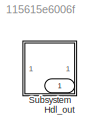
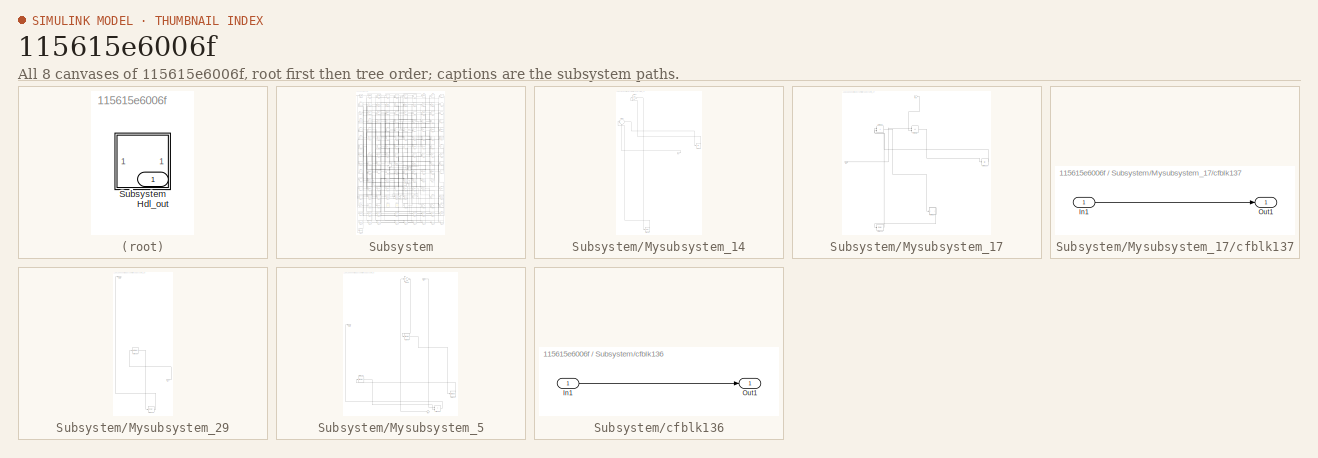
[diagram: thumbnail index - all 8 canvases of the model, root first then tree order]
MODEL slx_115615e6006f
KIND model
CONFIG AbsTol = auto
CONFIG EnableMultiTasking = off
CONFIG FixedStep = auto
CONFIG MaxStep = auto
CONFIG MinStep = auto
CONFIG RelTol = 1e-3
CONFIG SampleTimeConstraint = Unconstrained
CONFIG SolverName = VariableStepAuto
CONFIG StartTime = 0.0
CONFIG StopTime = 10.0
BLOCK [Outport] Hdl_out
  OutDataTypeStr = uint8
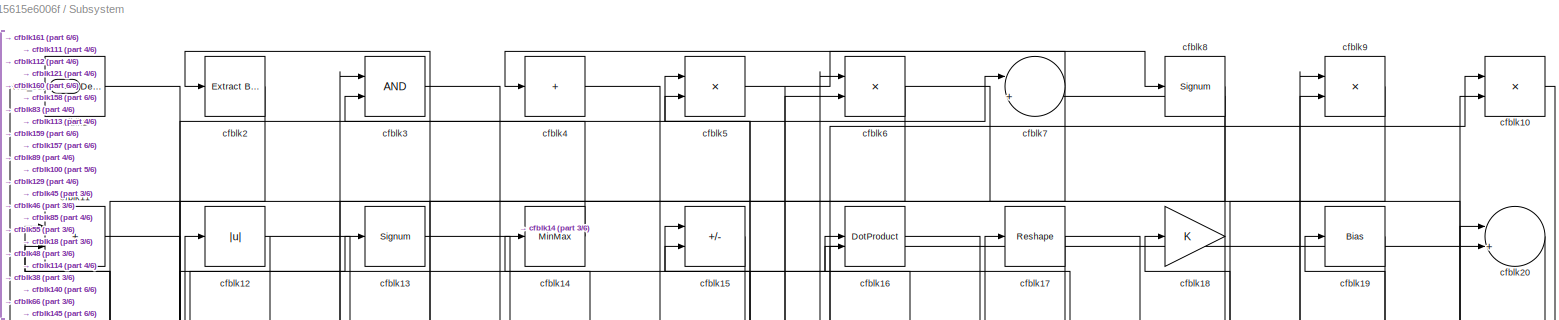
[diagram: Subsystem - part 1/6, full width, top band]
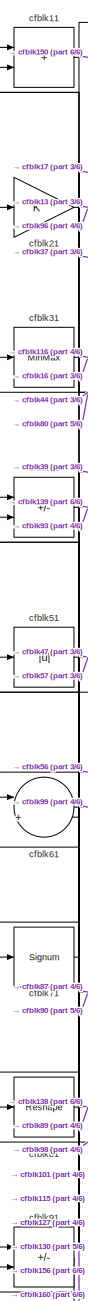
[diagram: Subsystem - part 2/6, top left region]
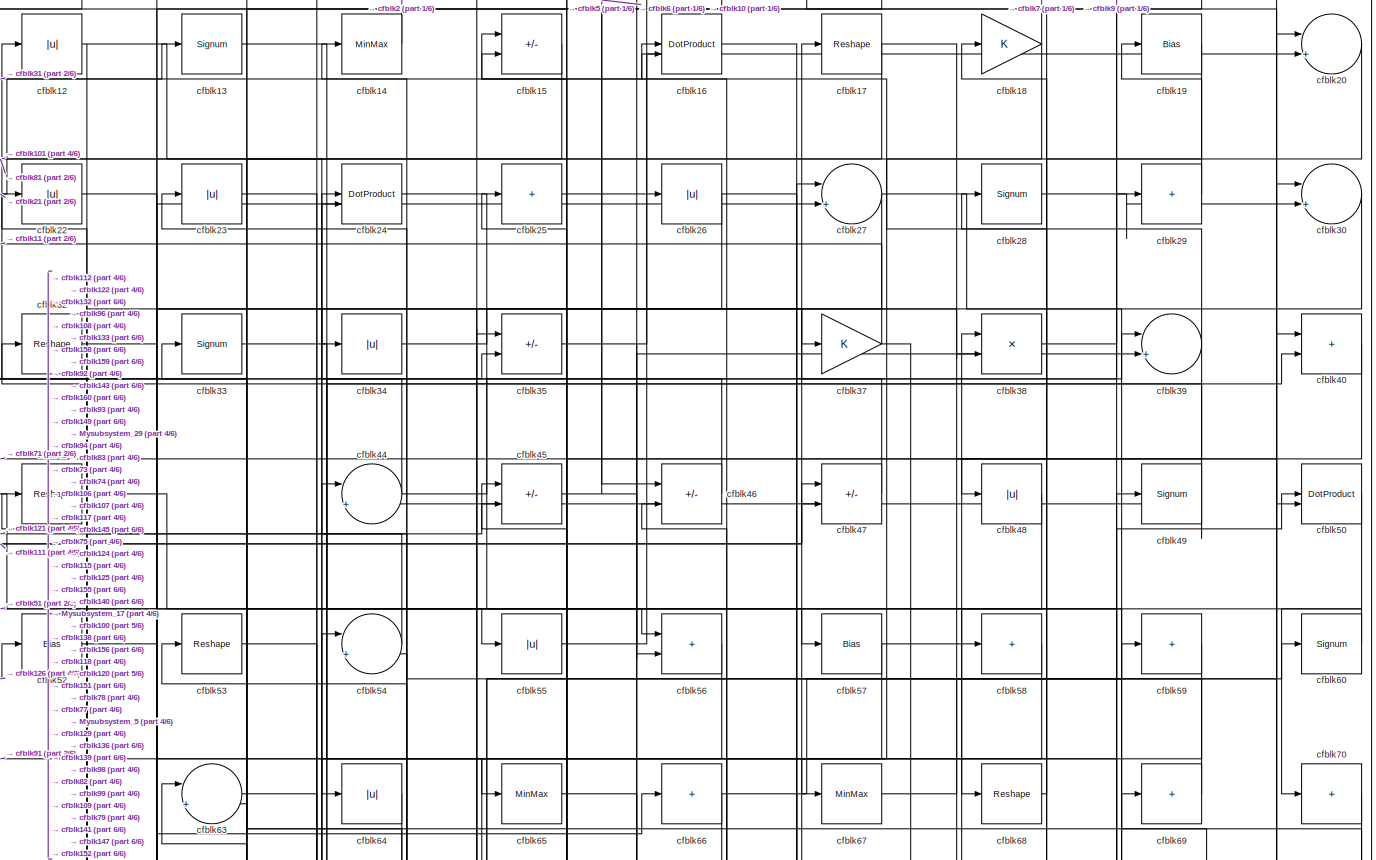
[diagram: Subsystem - part 3/6, full width, top band]
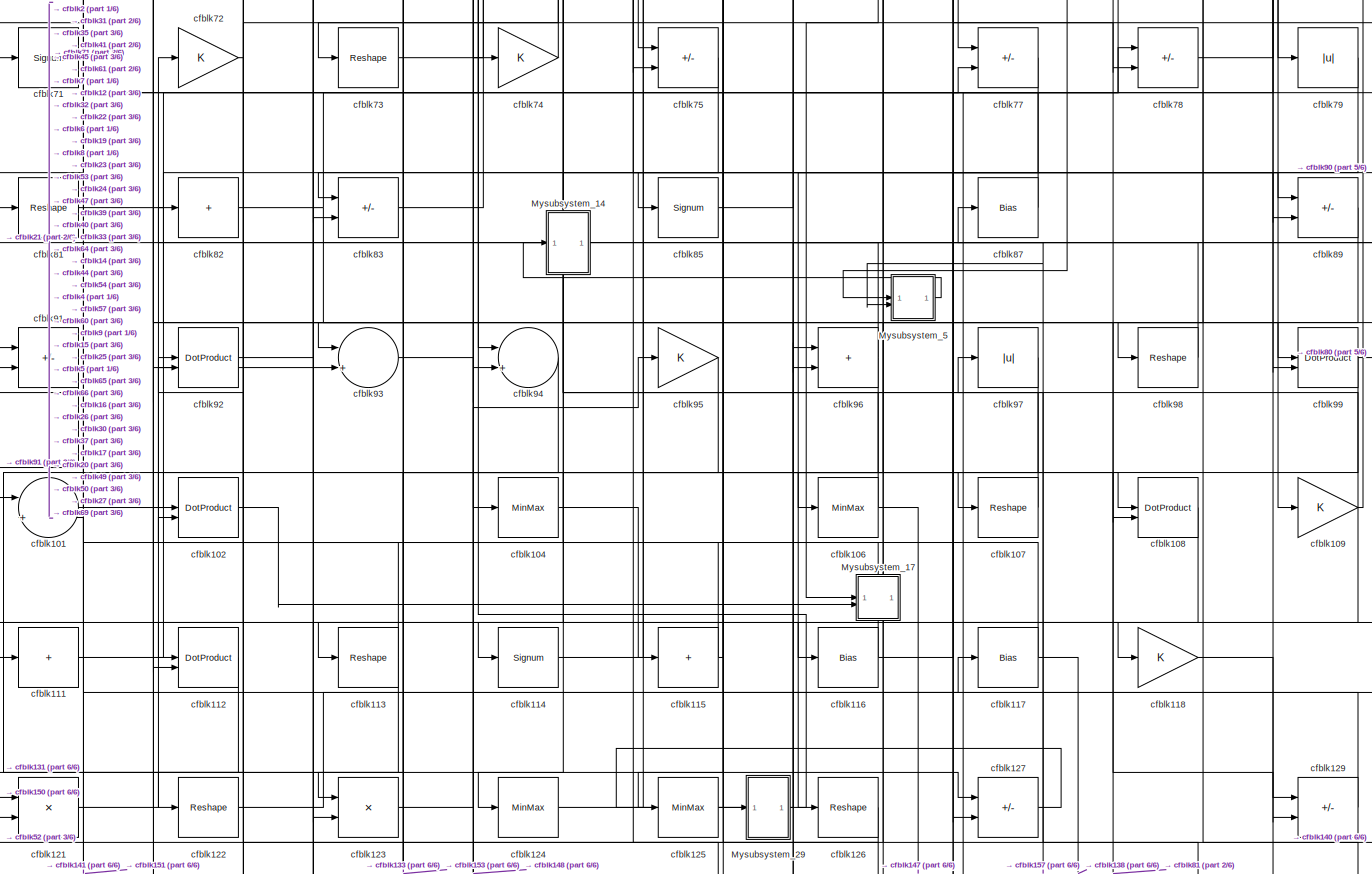
[diagram: Subsystem - part 4/6, full width, middle band]
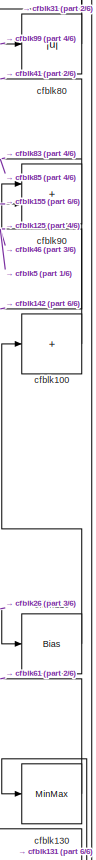
[diagram: Subsystem - part 5/6, middle right region]
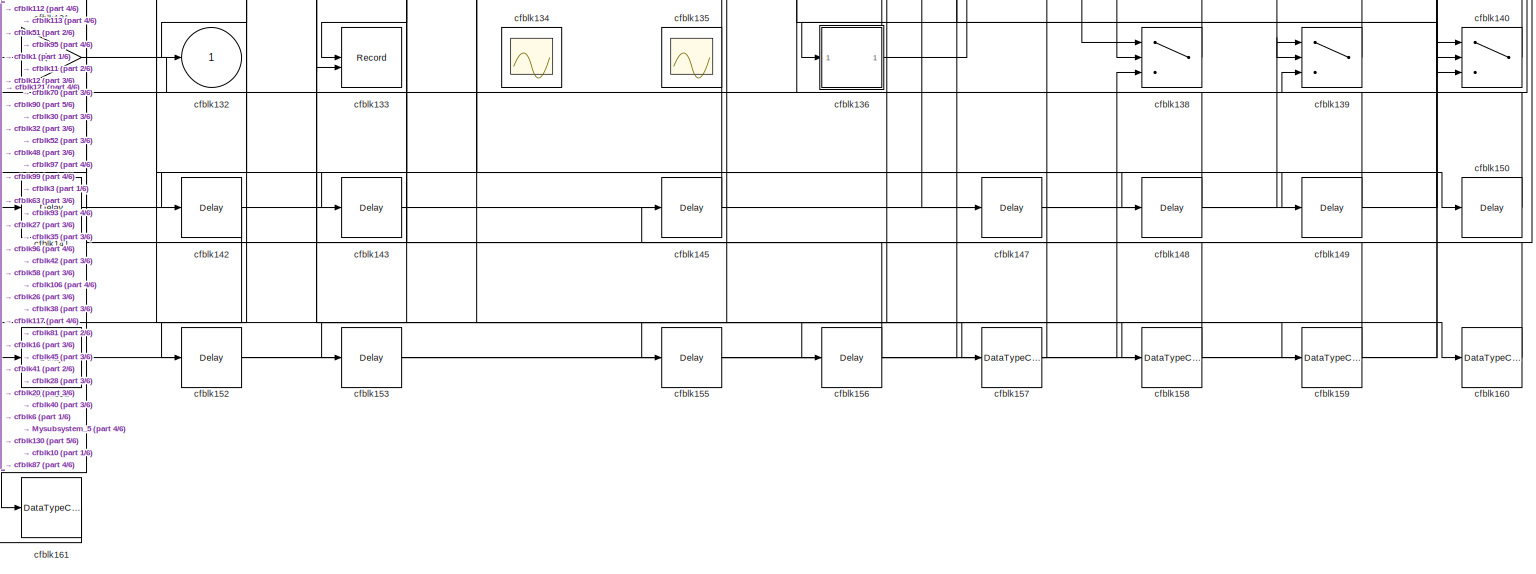
[diagram: Subsystem - part 6/6, full width, bottom band]
BLOCK [SubSystem] Subsystem
BLOCK [Outport] Subsystem/Hdl_out
  OutDataTypeStr = uint8
  Port = 2
BLOCK [SubSystem] Subsystem/Mysubsystem_14
  RTWFcnName = Mysubsystem_14
  RTWFcnNameOpts = User specified
  RTWFileNameOpts = Use function name
  RTWSystemCode = Reusable function
  TreatAsAtomicUnit = on
BLOCK [Inport] Subsystem/Mysubsystem_14/In1
BLOCK [Delay] Subsystem/Mysubsystem_14/cfblk154
  InputPortMap = u0
  SampleTime = 1
BLOCK [Gain] Subsystem/Mysubsystem_14/cfblk43
BLOCK [Sum] Subsystem/Mysubsystem_14/cfblk62
  Inputs = |++
BLOCK [Abs] Subsystem/Mysubsystem_14/cfblk88
  SaturateOnIntegerOverflow = off
BLOCK [SubSystem] Subsystem/Mysubsystem_17
  RTWFcnName = Mysubsystem_17
  RTWFcnNameOpts = User specified
  RTWFileNameOpts = Use function name
  RTWSystemCode = Reusable function
  TreatAsAtomicUnit = on
BLOCK [Inport] Subsystem/Mysubsystem_17/In1
BLOCK [Inport] Subsystem/Mysubsystem_17/In2
  Port = 2
BLOCK [Abs] Subsystem/Mysubsystem_17/cfblk110
  SaturateOnIntegerOverflow = off
BLOCK [SubSystem] Subsystem/Mysubsystem_17/cfblk137
  LibrarySourceBlock = hdlsllib/Ports &\nSubsystems/Subsystem
BLOCK [Inport] Subsystem/Mysubsystem_17/cfblk137/In1
BLOCK [Outport] Subsystem/Mysubsystem_17/cfblk137/Out1
BLOCK [Delay] Subsystem/Mysubsystem_17/cfblk144
  InputPortMap = u0
  SampleTime = 1
BLOCK [Sum] Subsystem/Mysubsystem_17/cfblk84
  IconShape = rectangular
BLOCK [Sum] Subsystem/Mysubsystem_17/cfblk86
  IconShape = rectangular
  Inputs = +-
BLOCK [SubSystem] Subsystem/Mysubsystem_29
  RTWFcnName = Mysubsystem_29
  RTWFcnNameOpts = User specified
  RTWFileNameOpts = Use function name
  RTWSystemCode = Reusable function
  TreatAsAtomicUnit = on
BLOCK [Inport] Subsystem/Mysubsystem_29/In1
BLOCK [Outport] Subsystem/Mysubsystem_29/Out1
BLOCK [MinMax] Subsystem/Mysubsystem_29/cfblk105
BLOCK [Delay] Subsystem/Mysubsystem_29/cfblk146
  InputPortMap = u0
  SampleTime = 1
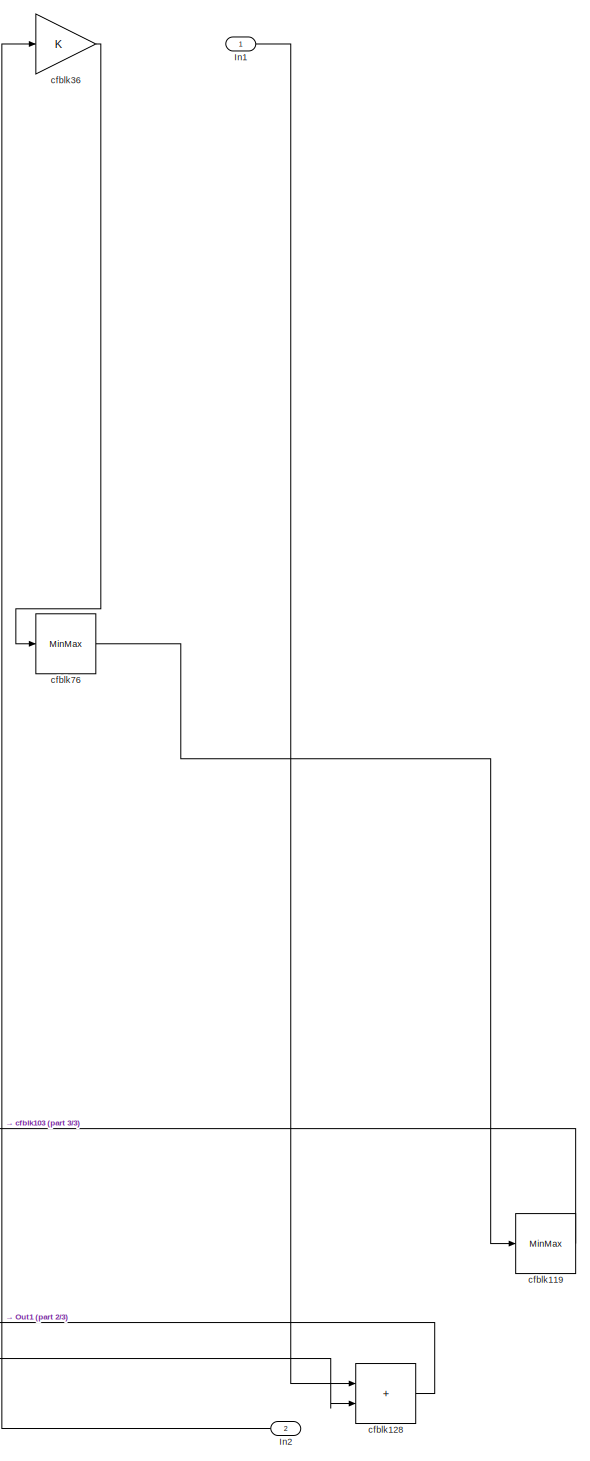
[diagram: Subsystem/Mysubsystem_5 - part 1/3, right side, full height]
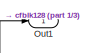
[diagram: Subsystem/Mysubsystem_5 - part 2/3, middle left region]
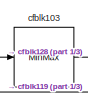
[diagram: Subsystem/Mysubsystem_5 - part 3/3, bottom left region]
BLOCK [SubSystem] Subsystem/Mysubsystem_5
  RTWFcnName = Mysubsystem_5
  RTWFcnNameOpts = User specified
  RTWFileNameOpts = Use function name
  RTWSystemCode = Reusable function
  TreatAsAtomicUnit = on
BLOCK [Inport] Subsystem/Mysubsystem_5/In1
BLOCK [Inport] Subsystem/Mysubsystem_5/In2
  Port = 2
BLOCK [Outport] Subsystem/Mysubsystem_5/Out1
BLOCK [MinMax] Subsystem/Mysubsystem_5/cfblk103
BLOCK [MinMax] Subsystem/Mysubsystem_5/cfblk119
BLOCK [Sum] Subsystem/Mysubsystem_5/cfblk128
  IconShape = rectangular
BLOCK [Gain] Subsystem/Mysubsystem_5/cfblk36
BLOCK [MinMax] Subsystem/Mysubsystem_5/cfblk76
BLOCK [Reference] Subsystem/cfblk1  REF=simulink/Logic and Bit
Operations/Detect
Decrease
  LibrarySourceBlock = hdlsllib/Logic and Bit\nOperations/Detect\nDecrease
  SourceBlock = simulink/Logic and Bit\nOperations/Detect\nDecrease
  SourceType = Detect Decrease
BLOCK [Product] Subsystem/cfblk10
  Inputs = */
  OutDataTypeStr = uint8
  RndMeth = Zero
  SaturateOnIntegerOverflow = on
BLOCK [Sum] Subsystem/cfblk100
  IconShape = rectangular
  Inputs = +
  OutDataTypeStr = uint8
BLOCK [Sum] Subsystem/cfblk101
  Inputs = |++
  OutDataTypeStr = uint8
BLOCK [DotProduct] Subsystem/cfblk102
  OutDataTypeStr = uint8
BLOCK [MinMax] Subsystem/cfblk104
  OutDataTypeStr = uint8
BLOCK [MinMax] Subsystem/cfblk106
  OutDataTypeStr = uint8
BLOCK [Reshape] Subsystem/cfblk107
BLOCK [DotProduct] Subsystem/cfblk108
  OutDataTypeStr = uint8
BLOCK [Gain] Subsystem/cfblk109
  OutDataTypeStr = uint8
BLOCK [Sum] Subsystem/cfblk11
  IconShape = rectangular
  OutDataTypeStr = uint8
BLOCK [Sum] Subsystem/cfblk111
  IconShape = rectangular
  Inputs = +
  OutDataTypeStr = uint8
BLOCK [DotProduct] Subsystem/cfblk112
  OutDataTypeStr = uint8
BLOCK [Reshape] Subsystem/cfblk113
BLOCK [Signum] Subsystem/cfblk114
BLOCK [Sum] Subsystem/cfblk115
  IconShape = rectangular
  Inputs = +
  OutDataTypeStr = uint8
BLOCK [Bias] Subsystem/cfblk116
  Bias = 0.0
  SaturateOnIntegerOverflow = off
BLOCK [Bias] Subsystem/cfblk117
  Bias = 0.0
  SaturateOnIntegerOverflow = off
BLOCK [Gain] Subsystem/cfblk118
  OutDataTypeStr = uint8
BLOCK [Abs] Subsystem/cfblk12
  OutDataTypeStr = uint8
  SaturateOnIntegerOverflow = off
BLOCK [Bias] Subsystem/cfblk120
  Bias = 0.0
  SaturateOnIntegerOverflow = off
BLOCK [Product] Subsystem/cfblk121
  Inputs = */
  OutDataTypeStr = uint8
  RndMeth = Zero
  SaturateOnIntegerOverflow = on
BLOCK [Reshape] Subsystem/cfblk122
BLOCK [Product] Subsystem/cfblk123
  Inputs = */
  OutDataTypeStr = uint8
  RndMeth = Zero
  SaturateOnIntegerOverflow = on
BLOCK [MinMax] Subsystem/cfblk124
  OutDataTypeStr = uint8
BLOCK [MinMax] Subsystem/cfblk125
  OutDataTypeStr = uint8
BLOCK [Reshape] Subsystem/cfblk126
BLOCK [Sum] Subsystem/cfblk127
  IconShape = rectangular
  Inputs = +-
  OutDataTypeStr = uint8
BLOCK [Sum] Subsystem/cfblk129
  IconShape = rectangular
  Inputs = +-
  OutDataTypeStr = uint8
BLOCK [Signum] Subsystem/cfblk13
BLOCK [MinMax] Subsystem/cfblk130
  OutDataTypeStr = uint8
BLOCK [Gain] Subsystem/cfblk131
  OutDataTypeStr = uint8
BLOCK [Outport] Subsystem/cfblk132
  OutDataTypeStr = uint8
  VectorParamsAs1DForOutWhenUnconnected = off
BLOCK [Record] Subsystem/cfblk133
  CompatibilityTag = XY
  FileSettingsInternal = {"entries":[{"content":{"excelSettings":{"content":{},"type":"Streamout.ExcelSettings"}},"type":"Streamout.FileSettingStorage","uuid":""}],"packageUris":["http:\/\/schema.mathworks.com\/mf0\/streamout_blocks\/R2020a"],"version":"1.0"}
  Layout = [1 1]
  SignalsInternal = {"entries":[{"content":{"signals":[{"content":{"blockPath":[],"dimensions":[1],"domain":"","lineColor":"#a2142f","plots":[1],"port":1,"signalID":60876,"signalName":"cfblk97"},"type":"RecordBlkView.Signal","uuid":""},{"content":{"blockPath":[],"dimensions":[1],"domain":"","lineColor":"#139fff","plots":[1],"port":2,"signalID":60879,"signalName":"cfblk30"},"type":"RecordBlkView.Signal","uuid":""}]},"...<+142ch>
  VisualizationBindings = {"xyplotplugin":{"info":[{"series":[{"bindingParametersList":[{"parameter":"X-Axis","signalID":60876,"signalName":"cfblk97"},{"parameter":"Y-Axis","signalID":60879,"signalName":"cfblk30"}],"seriesID":6446}],"subplotID":1}]}}
  st = -1
BLOCK [Scope] Subsystem/cfblk134
  Floating = on
  NumInputPorts = 1
  ScopeSpecificationString = Simulink.scopes.TimeScopeBlockCfg('CurrentConfiguration', extmgr.ConfigurationSet(extmgr.Configuration('Core','General UI',true,'FigureColor',[0.156862745098039 0.156862745098039 0.156862745098039]),extmgr.Configuration('Core','Source UI',true),extmgr.Configuration('Sources','WiredSimulink',true,'DataLoggingVariableName','ScopeData1','DataLoggingSaveFormat','StructureWithTime','DataLoggingLimitDat...<+2713ch>
BLOCK [Scope] Subsystem/cfblk135
  Floating = on
  NumInputPorts = 1
  ScopeSpecificationString = Simulink.scopes.TimeScopeBlockCfg('CurrentConfiguration', extmgr.ConfigurationSet(extmgr.Configuration('Core','General UI',true,'FigureColor',[0.156862745098039 0.156862745098039 0.156862745098039]),extmgr.Configuration('Core','Source UI',true),extmgr.Configuration('Sources','WiredSimulink',true,'DataLoggingSaveFormat','StructureWithTime','DataLoggingLimitDataPoints',true,'DataLoggingDecimation','...<+2674ch>
BLOCK [SubSystem] Subsystem/cfblk136
  LibrarySourceBlock = hdlsllib/Ports &\nSubsystems/Subsystem
BLOCK [Inport] Subsystem/cfblk136/In1
BLOCK [Outport] Subsystem/cfblk136/Out1
BLOCK [Switch] Subsystem/cfblk138
  InputSameDT = off
  OutDataTypeStr = uint8
  SaturateOnIntegerOverflow = off
BLOCK [Switch] Subsystem/cfblk139
  InputSameDT = off
  OutDataTypeStr = uint8
  SaturateOnIntegerOverflow = off
BLOCK [MinMax] Subsystem/cfblk14
  OutDataTypeStr = uint8
BLOCK [Switch] Subsystem/cfblk140
  InputSameDT = off
  OutDataTypeStr = uint8
  SaturateOnIntegerOverflow = off
BLOCK [Delay] Subsystem/cfblk141
  InputPortMap = u0
  SampleTime = 1
BLOCK [Delay] Subsystem/cfblk142
  InputPortMap = u0
  SampleTime = 1
BLOCK [Delay] Subsystem/cfblk143
  InputPortMap = u0
  SampleTime = 1
BLOCK [Delay] Subsystem/cfblk145
  InputPortMap = u0
  SampleTime = 1
BLOCK [Delay] Subsystem/cfblk147
  InputPortMap = u0
  SampleTime = 1
BLOCK [Delay] Subsystem/cfblk148
  InputPortMap = u0
  SampleTime = 1
BLOCK [Delay] Subsystem/cfblk149
  InputPortMap = u0
  SampleTime = 1
BLOCK [Sum] Subsystem/cfblk15
  IconShape = rectangular
  Inputs = +-
  OutDataTypeStr = uint8
BLOCK [Delay] Subsystem/cfblk150
  InputPortMap = u0
  SampleTime = 1
BLOCK [Delay] Subsystem/cfblk151
  InputPortMap = u0
  SampleTime = 1
BLOCK [Delay] Subsystem/cfblk152
  InputPortMap = u0
  SampleTime = 1
BLOCK [Delay] Subsystem/cfblk153
  InputPortMap = u0
  SampleTime = 1
BLOCK [Delay] Subsystem/cfblk155
  InputPortMap = u0
  SampleTime = 1
BLOCK [Delay] Subsystem/cfblk156
  InputPortMap = u0
  SampleTime = 1
BLOCK [DataTypeConversion] Subsystem/cfblk157
  OutDataTypeStr = uint8
  RndMeth = Floor
  SaturateOnIntegerOverflow = off
BLOCK [DataTypeConversion] Subsystem/cfblk158
  OutDataTypeStr = uint8
  RndMeth = Floor
  SaturateOnIntegerOverflow = off
BLOCK [DataTypeConversion] Subsystem/cfblk159
  OutDataTypeStr = uint8
  RndMeth = Floor
  SaturateOnIntegerOverflow = off
BLOCK [DotProduct] Subsystem/cfblk16
  OutDataTypeStr = uint8
BLOCK [DataTypeConversion] Subsystem/cfblk160
  OutDataTypeStr = uint8
  RndMeth = Floor
  SaturateOnIntegerOverflow = off
BLOCK [DataTypeConversion] Subsystem/cfblk161
  OutDataTypeStr = uint8
  RndMeth = Floor
  SaturateOnIntegerOverflow = off
BLOCK [Reshape] Subsystem/cfblk17
BLOCK [Gain] Subsystem/cfblk18
  OutDataTypeStr = uint8
BLOCK [Bias] Subsystem/cfblk19
  Bias = 0.0
  SaturateOnIntegerOverflow = off
BLOCK [Reference] Subsystem/cfblk2  REF=simulink/Logic and Bit
Operations/Extract Bits
  LibrarySourceBlock = hdlsllib/Logic and Bit\nOperations/Extract Bits
  SourceBlock = simulink/Logic and Bit\nOperations/Extract Bits
  SourceType = Extract Bits
BLOCK [Sum] Subsystem/cfblk20
  Inputs = |++
  OutDataTypeStr = uint8
BLOCK [Gain] Subsystem/cfblk21
  OutDataTypeStr = uint8
BLOCK [Abs] Subsystem/cfblk22
  OutDataTypeStr = uint8
  SaturateOnIntegerOverflow = off
BLOCK [Abs] Subsystem/cfblk23
  OutDataTypeStr = uint8
  SaturateOnIntegerOverflow = off
BLOCK [DotProduct] Subsystem/cfblk24
  OutDataTypeStr = uint8
BLOCK [Sum] Subsystem/cfblk25
  IconShape = rectangular
  Inputs = +
  OutDataTypeStr = uint8
BLOCK [Abs] Subsystem/cfblk26
  OutDataTypeStr = uint8
  SaturateOnIntegerOverflow = off
BLOCK [Sum] Subsystem/cfblk27
  Inputs = |++
  OutDataTypeStr = uint8
BLOCK [Signum] Subsystem/cfblk28
BLOCK [Sum] Subsystem/cfblk29
  IconShape = rectangular
  Inputs = +
  OutDataTypeStr = uint8
BLOCK [Logic] Subsystem/cfblk3
  AllPortsSameDT = off
  OutDataTypeStr = boolean
BLOCK [Sum] Subsystem/cfblk30
  Inputs = |++
  OutDataTypeStr = uint8
BLOCK [MinMax] Subsystem/cfblk31
  OutDataTypeStr = uint8
BLOCK [Reshape] Subsystem/cfblk32
BLOCK [Signum] Subsystem/cfblk33
BLOCK [Abs] Subsystem/cfblk34
  OutDataTypeStr = uint8
  SaturateOnIntegerOverflow = off
BLOCK [Sum] Subsystem/cfblk35
  IconShape = rectangular
  Inputs = +-
  OutDataTypeStr = uint8
BLOCK [Gain] Subsystem/cfblk37
  OutDataTypeStr = uint8
BLOCK [Product] Subsystem/cfblk38
  Inputs = */
  OutDataTypeStr = uint8
  RndMeth = Zero
  SaturateOnIntegerOverflow = on
BLOCK [Sum] Subsystem/cfblk39
  Inputs = |++
  OutDataTypeStr = uint8
BLOCK [Sum] Subsystem/cfblk4
  IconShape = rectangular
  Inputs = +
  OutDataTypeStr = uint8
BLOCK [Sum] Subsystem/cfblk40
  IconShape = rectangular
  OutDataTypeStr = uint8
BLOCK [Sum] Subsystem/cfblk41
  IconShape = rectangular
  Inputs = +-
  OutDataTypeStr = uint8
BLOCK [Reshape] Subsystem/cfblk42
BLOCK [Sum] Subsystem/cfblk44
  Inputs = |++
  OutDataTypeStr = uint8
BLOCK [Sum] Subsystem/cfblk45
  IconShape = rectangular
  Inputs = +-
  OutDataTypeStr = uint8
BLOCK [Sum] Subsystem/cfblk46
  IconShape = rectangular
  Inputs = +-
  OutDataTypeStr = uint8
BLOCK [Sum] Subsystem/cfblk47
  IconShape = rectangular
  Inputs = +-
  OutDataTypeStr = uint8
BLOCK [Abs] Subsystem/cfblk48
  OutDataTypeStr = uint8
  SaturateOnIntegerOverflow = off
BLOCK [Signum] Subsystem/cfblk49
BLOCK [Product] Subsystem/cfblk5
  Inputs = */
  OutDataTypeStr = uint8
  RndMeth = Zero
  SaturateOnIntegerOverflow = on
BLOCK [DotProduct] Subsystem/cfblk50
  OutDataTypeStr = uint8
BLOCK [Abs] Subsystem/cfblk51
  OutDataTypeStr = uint8
  SaturateOnIntegerOverflow = off
BLOCK [Bias] Subsystem/cfblk52
  Bias = 0.0
  SaturateOnIntegerOverflow = off
BLOCK [Reshape] Subsystem/cfblk53
BLOCK [Sum] Subsystem/cfblk54
  Inputs = |++
  OutDataTypeStr = uint8
BLOCK [Abs] Subsystem/cfblk55
  OutDataTypeStr = uint8
  SaturateOnIntegerOverflow = off
BLOCK [Sum] Subsystem/cfblk56
  IconShape = rectangular
  OutDataTypeStr = uint8
BLOCK [Bias] Subsystem/cfblk57
  Bias = 0.0
  SaturateOnIntegerOverflow = off
BLOCK [Sum] Subsystem/cfblk58
  IconShape = rectangular
  Inputs = +
  OutDataTypeStr = uint8
BLOCK [Sum] Subsystem/cfblk59
  IconShape = rectangular
  Inputs = +
  OutDataTypeStr = uint8
BLOCK [Product] Subsystem/cfblk6
  Inputs = */
  OutDataTypeStr = uint8
  RndMeth = Zero
  SaturateOnIntegerOverflow = on
BLOCK [Signum] Subsystem/cfblk60
BLOCK [Sum] Subsystem/cfblk61
  Inputs = |++
  OutDataTypeStr = uint8
BLOCK [Sum] Subsystem/cfblk63
  Inputs = |++
  OutDataTypeStr = uint8
BLOCK [Abs] Subsystem/cfblk64
  OutDataTypeStr = uint8
  SaturateOnIntegerOverflow = off
BLOCK [MinMax] Subsystem/cfblk65
  OutDataTypeStr = uint8
BLOCK [Sum] Subsystem/cfblk66
  IconShape = rectangular
  Inputs = +
  OutDataTypeStr = uint8
BLOCK [MinMax] Subsystem/cfblk67
  OutDataTypeStr = uint8
BLOCK [Reshape] Subsystem/cfblk68
BLOCK [Sum] Subsystem/cfblk69
  IconShape = rectangular
  Inputs = +
  OutDataTypeStr = uint8
BLOCK [Sum] Subsystem/cfblk7
  Inputs = |++
  OutDataTypeStr = uint8
BLOCK [Sum] Subsystem/cfblk70
  IconShape = rectangular
  Inputs = +
  OutDataTypeStr = uint8
BLOCK [Signum] Subsystem/cfblk71
BLOCK [Gain] Subsystem/cfblk72
  OutDataTypeStr = uint8
BLOCK [Reshape] Subsystem/cfblk73
BLOCK [Gain] Subsystem/cfblk74
  OutDataTypeStr = uint8
BLOCK [Sum] Subsystem/cfblk75
  IconShape = rectangular
  Inputs = +-
  OutDataTypeStr = uint8
BLOCK [Sum] Subsystem/cfblk77
  IconShape = rectangular
  Inputs = +-
  OutDataTypeStr = uint8
BLOCK [Sum] Subsystem/cfblk78
  IconShape = rectangular
  Inputs = +-
  OutDataTypeStr = uint8
BLOCK [Abs] Subsystem/cfblk79
  OutDataTypeStr = uint8
  SaturateOnIntegerOverflow = off
BLOCK [Signum] Subsystem/cfblk8
BLOCK [Abs] Subsystem/cfblk80
  OutDataTypeStr = uint8
  SaturateOnIntegerOverflow = off
BLOCK [Reshape] Subsystem/cfblk81
BLOCK [Sum] Subsystem/cfblk82
  IconShape = rectangular
  Inputs = +
  OutDataTypeStr = uint8
BLOCK [Sum] Subsystem/cfblk83
  IconShape = rectangular
  Inputs = +-
  OutDataTypeStr = uint8
BLOCK [Signum] Subsystem/cfblk85
BLOCK [Bias] Subsystem/cfblk87
  Bias = 0.0
  SaturateOnIntegerOverflow = off
BLOCK [Sum] Subsystem/cfblk89
  IconShape = rectangular
  Inputs = +-
  OutDataTypeStr = uint8
BLOCK [Product] Subsystem/cfblk9
  Inputs = */
  OutDataTypeStr = uint8
  RndMeth = Zero
  SaturateOnIntegerOverflow = on
BLOCK [Sum] Subsystem/cfblk90
  IconShape = rectangular
  OutDataTypeStr = uint8
BLOCK [Sum] Subsystem/cfblk91
  IconShape = rectangular
  Inputs = +-
  OutDataTypeStr = uint8
BLOCK [DotProduct] Subsystem/cfblk92
  OutDataTypeStr = uint8
BLOCK [Sum] Subsystem/cfblk93
  Inputs = |++
  OutDataTypeStr = uint8
BLOCK [Sum] Subsystem/cfblk94
  Inputs = |++
  OutDataTypeStr = uint8
BLOCK [Gain] Subsystem/cfblk95
  OutDataTypeStr = uint8
BLOCK [Sum] Subsystem/cfblk96
  IconShape = rectangular
  OutDataTypeStr = uint8
BLOCK [Abs] Subsystem/cfblk97
  OutDataTypeStr = uint8
  SaturateOnIntegerOverflow = off
BLOCK [Reshape] Subsystem/cfblk98
BLOCK [DotProduct] Subsystem/cfblk99
  OutDataTypeStr = uint8
LINE Subsystem/Mysubsystem_14/In1:1 -> Subsystem/Mysubsystem_14/cfblk62:2
LINE Subsystem/Mysubsystem_14/cfblk154:1 -> Subsystem/Mysubsystem_14/cfblk62:1
LINE Subsystem/Mysubsystem_14/cfblk43:1 -> Subsystem/Mysubsystem_14/cfblk154:1
LINE Subsystem/Mysubsystem_14/cfblk62:1 -> Subsystem/Mysubsystem_14/cfblk88:1
LINE Subsystem/Mysubsystem_14/cfblk88:1 -> Subsystem/Mysubsystem_14/cfblk43:1
LINE Subsystem/Mysubsystem_17/In1:1 -> Subsystem/Mysubsystem_17/cfblk86:2
LINE Subsystem/Mysubsystem_17/In2:1 -> Subsystem/Mysubsystem_17/cfblk86:1
LINE Subsystem/Mysubsystem_17/cfblk110:1 -> Subsystem/Mysubsystem_17/cfblk84:1
LINE Subsystem/Mysubsystem_17/cfblk137/In1:1 -> Subsystem/Mysubsystem_17/cfblk137/Out1:1
LINE Subsystem/Mysubsystem_17/cfblk137:1 -> Subsystem/Mysubsystem_17/cfblk144:1
LINE Subsystem/Mysubsystem_17/cfblk144:1 -> Subsystem/Mysubsystem_17/cfblk84:2
LINE Subsystem/Mysubsystem_17/cfblk84:1 -> Subsystem/Mysubsystem_17/cfblk137:1
LINE Subsystem/Mysubsystem_17/cfblk86:1 -> Subsystem/Mysubsystem_17/cfblk110:1
LINE Subsystem/Mysubsystem_29/In1:1 -> Subsystem/Mysubsystem_29/cfblk105:1
LINE Subsystem/Mysubsystem_29/cfblk105:1 -> Subsystem/Mysubsystem_29/cfblk146:1
LINE Subsystem/Mysubsystem_29/cfblk146:1 -> Subsystem/Mysubsystem_29/Out1:1
LINE Subsystem/Mysubsystem_29:1 -> Subsystem/cfblk54:1
LINE Subsystem/Mysubsystem_5/In1:1 -> Subsystem/Mysubsystem_5/cfblk128:1
LINE Subsystem/Mysubsystem_5/In2:1 -> Subsystem/Mysubsystem_5/cfblk36:1
LINE Subsystem/Mysubsystem_5/cfblk103:1 -> Subsystem/Mysubsystem_5/cfblk128:2
LINE Subsystem/Mysubsystem_5/cfblk119:1 -> Subsystem/Mysubsystem_5/cfblk103:1
LINE Subsystem/Mysubsystem_5/cfblk128:1 -> Subsystem/Mysubsystem_5/Out1:1
LINE Subsystem/Mysubsystem_5/cfblk36:1 -> Subsystem/Mysubsystem_5/cfblk76:1
LINE Subsystem/Mysubsystem_5/cfblk76:1 -> Subsystem/Mysubsystem_5/cfblk119:1
LINE Subsystem/Mysubsystem_5:1 -> Subsystem/Mysubsystem_14:1
NET Subsystem/cfblk100:1 -> Subsystem/cfblk46:2, Subsystem/cfblk5:1
LINE Subsystem/cfblk101:1 -> Subsystem/cfblk107:1
LINE Subsystem/cfblk102:1 -> Subsystem/Mysubsystem_17:2
LINE Subsystem/cfblk104:1 -> Subsystem/cfblk115:1
NET Subsystem/cfblk106:1 -> Subsystem/cfblk147:1, Subsystem/cfblk44:1
LINE Subsystem/cfblk107:1 -> Subsystem/cfblk53:1
LINE Subsystem/cfblk108:1 -> Subsystem/cfblk121:2
NET Subsystem/cfblk109:1 -> Subsystem/cfblk123:2, Subsystem/cfblk14:1, Subsystem/cfblk69:1
LINE Subsystem/cfblk10:1 -> Subsystem/cfblk145:1
NET Subsystem/cfblk111:1 -> Subsystem/cfblk24:1, Subsystem/cfblk47:2
LINE Subsystem/cfblk112:1 -> Subsystem/cfblk131:1
NET Subsystem/cfblk113:1 -> Subsystem/cfblk102:2, Subsystem/cfblk151:1
LINE Subsystem/cfblk114:1 -> Subsystem/cfblk9:1
NET Subsystem/cfblk115:1 -> Subsystem/cfblk25:1, Subsystem/cfblk91:2
NET Subsystem/cfblk116:1 -> Subsystem/cfblk78:1, Subsystem/cfblk92:1
NET Subsystem/cfblk117:1 -> Subsystem/cfblk138:1, Subsystem/cfblk54:2, Subsystem/cfblk82:1
LINE Subsystem/cfblk118:1 -> Subsystem/cfblk129:1
LINE Subsystem/cfblk11:1 -> Subsystem/cfblk150:1
LINE Subsystem/cfblk120:1 -> Subsystem/cfblk100:1
NET Subsystem/cfblk121:1 -> Subsystem/cfblk35:2, Subsystem/cfblk45:1, Subsystem/cfblk72:1, Subsystem/cfblk7:1
NET Subsystem/cfblk122:1 -> Subsystem/cfblk117:1, Subsystem/cfblk92:2
LINE Subsystem/cfblk123:1 -> Subsystem/cfblk95:1
LINE Subsystem/cfblk124:1 -> Subsystem/cfblk60:1
NET Subsystem/cfblk125:1 -> Subsystem/cfblk15:1, Subsystem/cfblk90:1
LINE Subsystem/cfblk126:1 -> Subsystem/cfblk52:1
LINE Subsystem/cfblk127:1 -> Subsystem/Mysubsystem_29:1
LINE Subsystem/cfblk129:1 -> Subsystem/cfblk5:2
NET Subsystem/cfblk12:1 -> Subsystem/cfblk132:1, Subsystem/cfblk94:1
LINE Subsystem/cfblk130:1 -> Subsystem/cfblk61:1
LINE Subsystem/cfblk131:1 -> Subsystem/cfblk130:1
LINE Subsystem/cfblk136/In1:1 -> Subsystem/cfblk136/Out1:1
NET Subsystem/cfblk136:1 -> Subsystem/cfblk38:1, Subsystem/cfblk42:1
NET Subsystem/cfblk138:1 -> Subsystem/cfblk16:1, Subsystem/cfblk45:2
LINE Subsystem/cfblk139:1 -> Subsystem/cfblk28:1
LINE Subsystem/cfblk13:1 -> Subsystem/cfblk55:1
NET Subsystem/cfblk140:1 -> Subsystem/Mysubsystem_5:2, Subsystem/cfblk87:1
LINE Subsystem/cfblk141:1 -> Subsystem/cfblk40:1
LINE Subsystem/cfblk142:1 -> Subsystem/cfblk161:1
LINE Subsystem/cfblk143:1 -> Subsystem/cfblk139:1
LINE Subsystem/cfblk145:1 -> Subsystem/cfblk35:1
LINE Subsystem/cfblk147:1 -> Subsystem/cfblk30:1
LINE Subsystem/cfblk148:1 -> Subsystem/cfblk96:1
LINE Subsystem/cfblk149:1 -> Subsystem/cfblk139:3
LINE Subsystem/cfblk14:1 -> Subsystem/cfblk2:1
LINE Subsystem/cfblk150:1 -> Subsystem/cfblk121:1
LINE Subsystem/cfblk151:1 -> Subsystem/cfblk27:1
LINE Subsystem/cfblk152:1 -> Subsystem/cfblk20:1
LINE Subsystem/cfblk153:1 -> Subsystem/cfblk138:3
LINE Subsystem/cfblk155:1 -> Subsystem/cfblk90:2
LINE Subsystem/cfblk156:1 -> Subsystem/cfblk41:2
LINE Subsystem/cfblk157:1 -> Subsystem/cfblk97:1
LINE Subsystem/cfblk158:1 -> Subsystem/cfblk3:1
LINE Subsystem/cfblk159:1 -> Subsystem/cfblk3:2
LINE Subsystem/cfblk15:1 -> Subsystem/cfblk101:2
NET Subsystem/cfblk160:1 -> Subsystem/cfblk51:1, Subsystem/cfblk63:1
LINE Subsystem/cfblk161:1 -> Subsystem/cfblk1:1
LINE Subsystem/cfblk16:1 -> Subsystem/cfblk118:1
NET Subsystem/cfblk17:1 -> Subsystem/cfblk129:2, Subsystem/cfblk50:2, Subsystem/cfblk81:1
NET Subsystem/cfblk18:1 -> Subsystem/cfblk67:1, Subsystem/cfblk7:2
NET Subsystem/cfblk19:1 -> Subsystem/cfblk63:2, Subsystem/cfblk93:1
LINE Subsystem/cfblk1:1 -> Subsystem/cfblk160:1
LINE Subsystem/cfblk20:1 -> Subsystem/cfblk98:1
NET Subsystem/cfblk21:1 -> Subsystem/cfblk13:1, Subsystem/cfblk96:2
NET Subsystem/cfblk22:1 -> Subsystem/cfblk108:2, Subsystem/cfblk38:2
LINE Subsystem/cfblk23:1 -> Subsystem/cfblk74:1
LINE Subsystem/cfblk24:1 -> Subsystem/cfblk79:1
LINE Subsystem/cfblk25:1 -> Subsystem/cfblk26:1
NET Subsystem/cfblk26:1 -> Subsystem/cfblk112:1, Subsystem/cfblk120:1, Subsystem/cfblk140:3
NET Subsystem/cfblk27:1 -> Subsystem/cfblk109:1, Subsystem/cfblk155:1
LINE Subsystem/cfblk28:1 -> Subsystem/cfblk30:2
LINE Subsystem/cfblk29:1 -> Subsystem/cfblk19:1
LINE Subsystem/cfblk2:1 -> Subsystem/cfblk111:1
NET Subsystem/cfblk30:1 -> Subsystem/cfblk133:2, Subsystem/cfblk34:1, Subsystem/cfblk75:2, Subsystem/cfblk77:1
NET Subsystem/cfblk31:1 -> Subsystem/cfblk116:1, Subsystem/cfblk16:2
NET Subsystem/cfblk32:1 -> Subsystem/cfblk158:1, Subsystem/cfblk27:2
LINE Subsystem/cfblk33:1 -> Subsystem/cfblk99:2
LINE Subsystem/cfblk34:1 -> Subsystem/cfblk37:1
NET Subsystem/cfblk35:1 -> Subsystem/cfblk140:2, Subsystem/cfblk20:2
NET Subsystem/cfblk37:1 -> Subsystem/Mysubsystem_5:1, Subsystem/cfblk11:2
LINE Subsystem/cfblk38:1 -> Subsystem/cfblk9:2
NET Subsystem/cfblk39:1 -> Subsystem/cfblk15:2, Subsystem/cfblk71:1
LINE Subsystem/cfblk3:1 -> Subsystem/cfblk157:1
LINE Subsystem/cfblk40:1 -> Subsystem/cfblk125:1
NET Subsystem/cfblk41:1 -> Subsystem/cfblk139:2, Subsystem/cfblk93:2
NET Subsystem/cfblk42:1 -> Subsystem/cfblk56:1, Subsystem/cfblk65:1
NET Subsystem/cfblk44:1 -> Subsystem/cfblk11:1, Subsystem/cfblk29:1
NET Subsystem/cfblk45:1 -> Subsystem/cfblk56:2, Subsystem/cfblk6:2
LINE Subsystem/cfblk46:1 -> Subsystem/cfblk24:2
LINE Subsystem/cfblk47:1 -> Subsystem/cfblk17:1
LINE Subsystem/cfblk48:1 -> Subsystem/cfblk143:1
NET Subsystem/cfblk49:1 -> Subsystem/cfblk12:1, Subsystem/cfblk44:2
LINE Subsystem/cfblk4:1 -> Subsystem/cfblk89:2
LINE Subsystem/cfblk50:1 -> Subsystem/cfblk70:1
NET Subsystem/cfblk51:1 -> Subsystem/cfblk47:1, Subsystem/cfblk57:1
NET Subsystem/cfblk52:1 -> Subsystem/cfblk122:1, Subsystem/cfblk159:1
LINE Subsystem/cfblk53:1 -> Subsystem/cfblk94:2
LINE Subsystem/cfblk54:1 -> Subsystem/cfblk22:1
NET Subsystem/cfblk55:1 -> Subsystem/cfblk10:1, Subsystem/cfblk39:2
LINE Subsystem/cfblk56:1 -> Subsystem/cfblk91:1
NET Subsystem/cfblk57:1 -> Subsystem/cfblk68:1, Subsystem/cfblk75:1
NET Subsystem/cfblk58:1 -> Subsystem/cfblk136:1, Subsystem/cfblk156:1
LINE Subsystem/cfblk59:1 -> Subsystem/cfblk64:1
NET Subsystem/cfblk5:1 -> Subsystem/cfblk46:1, Subsystem/cfblk8:1
LINE Subsystem/cfblk60:1 -> Subsystem/cfblk58:1
LINE Subsystem/cfblk61:1 -> Subsystem/cfblk99:1
LINE Subsystem/cfblk63:1 -> Subsystem/cfblk149:1
LINE Subsystem/cfblk64:1 -> Subsystem/cfblk73:1
LINE Subsystem/cfblk65:1 -> Subsystem/cfblk108:1
NET Subsystem/cfblk66:1 -> Subsystem/Mysubsystem_17:1, Subsystem/cfblk10:2, Subsystem/cfblk78:2
LINE Subsystem/cfblk67:1 -> Subsystem/cfblk59:1
LINE Subsystem/cfblk68:1 -> Subsystem/cfblk18:1
LINE Subsystem/cfblk69:1 -> Subsystem/cfblk23:1
NET Subsystem/cfblk6:1 -> Subsystem/cfblk140:1, Subsystem/cfblk83:2
LINE Subsystem/cfblk70:1 -> Subsystem/cfblk152:1
LINE Subsystem/cfblk71:1 -> Subsystem/cfblk127:1
LINE Subsystem/cfblk72:1 -> Subsystem/cfblk102:1
LINE Subsystem/cfblk73:1 -> Subsystem/cfblk40:2
LINE Subsystem/cfblk74:1 -> Subsystem/cfblk33:1
LINE Subsystem/cfblk75:1 -> Subsystem/cfblk124:1
LINE Subsystem/cfblk77:1 -> Subsystem/cfblk126:1
LINE Subsystem/cfblk78:1 -> Subsystem/cfblk50:1
LINE Subsystem/cfblk79:1 -> Subsystem/cfblk127:2
NET Subsystem/cfblk7:1 -> Subsystem/cfblk112:2, Subsystem/cfblk4:1
LINE Subsystem/cfblk80:1 -> Subsystem/cfblk31:1
NET Subsystem/cfblk81:1 -> Subsystem/cfblk138:2, Subsystem/cfblk89:1
NET Subsystem/cfblk82:1 -> Subsystem/cfblk104:1, Subsystem/cfblk49:1
LINE Subsystem/cfblk83:1 -> Subsystem/cfblk39:1
NET Subsystem/cfblk85:1 -> Subsystem/cfblk6:1, Subsystem/cfblk77:2
LINE Subsystem/cfblk87:1 -> Subsystem/cfblk61:2
LINE Subsystem/cfblk89:1 -> Subsystem/cfblk106:1
LINE Subsystem/cfblk8:1 -> Subsystem/cfblk113:1
NET Subsystem/cfblk90:1 -> Subsystem/cfblk142:1, Subsystem/cfblk41:1, Subsystem/cfblk83:1, Subsystem/cfblk85:1
LINE Subsystem/cfblk91:1 -> Subsystem/cfblk101:1
LINE Subsystem/cfblk92:1 -> Subsystem/cfblk66:1
LINE Subsystem/cfblk93:1 -> Subsystem/cfblk148:1
LINE Subsystem/cfblk94:1 -> Subsystem/cfblk123:1
LINE Subsystem/cfblk95:1 -> Subsystem/cfblk141:1
NET Subsystem/cfblk96:1 -> Subsystem/cfblk114:1, Subsystem/cfblk32:1
LINE Subsystem/cfblk97:1 -> Subsystem/cfblk133:1
LINE Subsystem/cfblk98:1 -> Subsystem/cfblk21:1
NET Subsystem/cfblk99:1 -> Subsystem/cfblk153:1, Subsystem/cfblk80:1
LINE Subsystem/cfblk9:1 -> Subsystem/cfblk48:1
note: NET lines group one-source signal fan-out (src -> all destinations, sorted); 1:1 wires keep LINE
